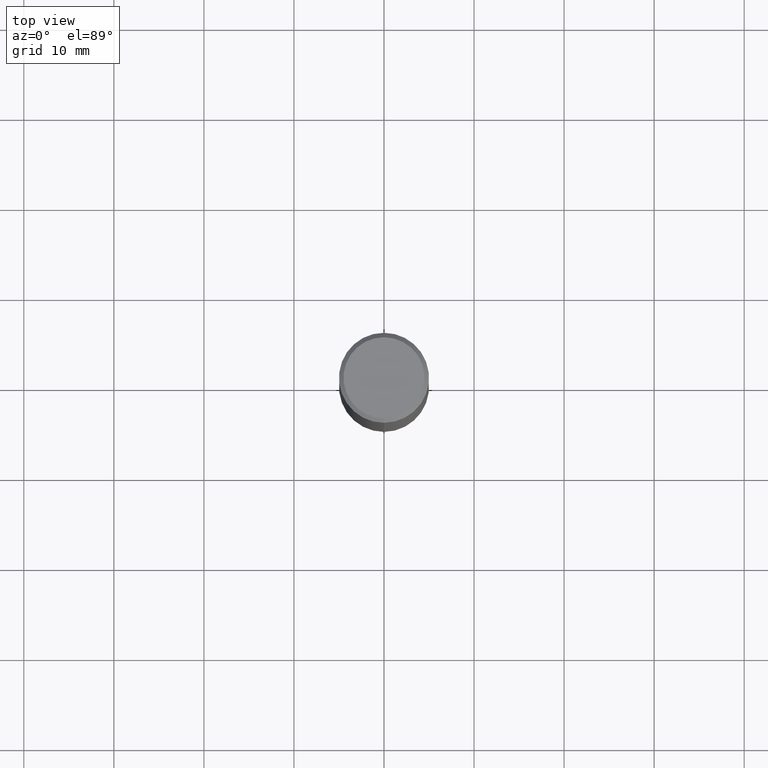
[diagram: clean part render]
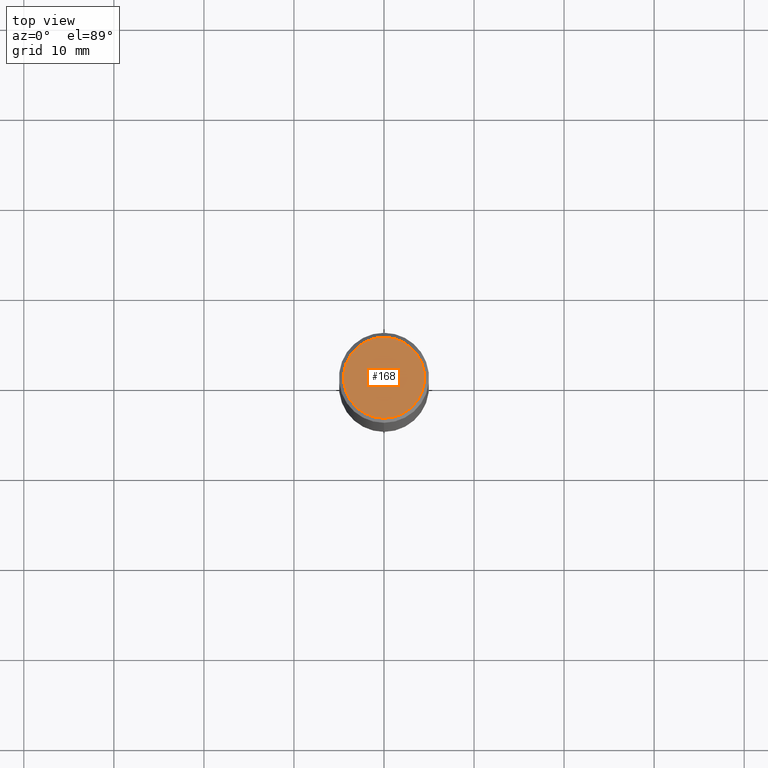
[diagram: same view with one face highlighted and labeled with its STEP entity id]
A machine part, top view. The second image highlights one B-rep face of the part: STEP entity #168.
In plain terms, the highlighted planar face has unit normal (-0, 0, 1).
Its self-contained STEP definition (entity closure, byte-faithful):
#100=EDGE_CURVE('',#180,#182,#222,.T.);
#110=EDGE_CURVE('',#182,#180,#234,.T.);
#168=ADVANCED_FACE('',(#300),#301,.T.);
#180=VERTEX_POINT('',#315);
#182=VERTEX_POINT('',#317);
#222=CIRCLE('',#355,4.5);
#234=CIRCLE('',#370,4.5);
#300=FACE_OUTER_BOUND('',#453,.T.);
#301=PLANE('',#454);
#315=CARTESIAN_POINT('',(5.5107285922007E-016,-4.5,0.0));
#317=CARTESIAN_POINT('',(0.0,4.5,0.0));
#355=AXIS2_PLACEMENT_3D('',#494,#495,#496);
#370=AXIS2_PLACEMENT_3D('',#512,#513,#514);
#453=EDGE_LOOP('',(#598,#599));
#454=AXIS2_PLACEMENT_3D('',#600,#601,#602);
#494=CARTESIAN_POINT('',(0.0,0.0,0.0));
#495=DIRECTION('',(0.0,0.0,-1.0));
#496=DIRECTION('',(0.0,1.0,0.0));
#512=CARTESIAN_POINT('',(0.0,0.0,0.0));
#513=DIRECTION('',(0.0,0.0,-1.0));
#514=DIRECTION('',(0.0,1.0,0.0));
#598=ORIENTED_EDGE('',*,*,#110,.F.);
#599=ORIENTED_EDGE('',*,*,#100,.F.);
#600=CARTESIAN_POINT('',(0.0,2.25,0.0));
#601=DIRECTION('',(-0.0,0.0,1.0));
#602=DIRECTION('',(0.0,-1.0,0.0));